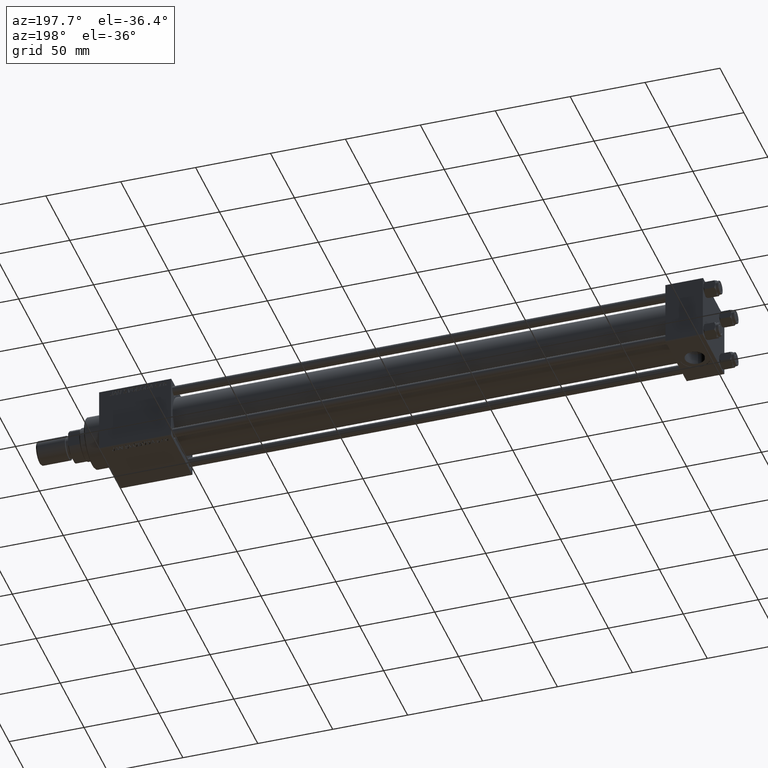
[diagram: clean part render]
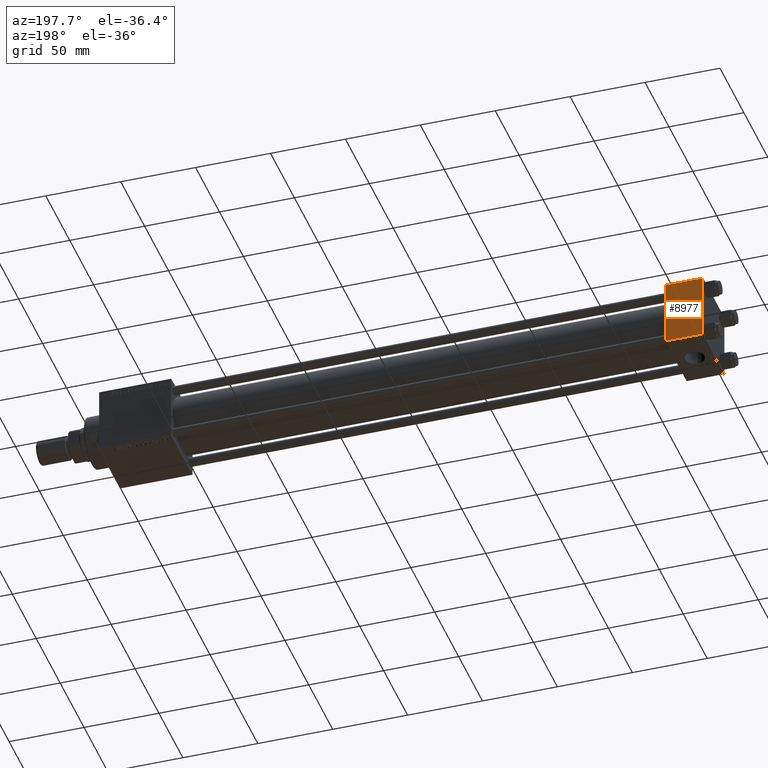
[diagram: same view with one face highlighted and labeled with its STEP entity id]
A machine part, auxiliary view. The second image highlights one B-rep face of the part: STEP entity #8977.
In plain terms, the highlighted planar face has unit normal (0, 1, 0).
Its self-contained STEP definition (entity closure, byte-faithful):
#120 = DIRECTION ( 'NONE',  ( 1.000000000000000000, 0.000000000000000000, 0.000000000000000000 ) ) ;
#4054 = VERTEX_POINT ( 'NONE', #37311 ) ;
#4689 = CARTESIAN_POINT ( 'NONE',  ( 0.000000000000000000, 22.50000000000000000, 22.50000000000000355 ) ) ;
#7044 = LINE ( 'NONE', #23242, #41146 ) ;
#8977 = ADVANCED_FACE ( 'NONE', ( #34414 ), #50616, .T. ) ;
#9258 = CARTESIAN_POINT ( 'NONE',  ( 25.00000000000000000, 22.50000000000000000, 21.99999999999999645 ) ) ;
#13058 = EDGE_CURVE ( 'NONE', #49857, #18200, #48726, .T. ) ;
#14237 = CARTESIAN_POINT ( 'NONE',  ( 25.00000000000000000, 22.50000000000000000, 22.50000000000000355 ) ) ;
#18200 = VERTEX_POINT ( 'NONE', #9258 ) ;
#18444 = EDGE_CURVE ( 'NONE', #49857, #4054, #41084, .T. ) ;
#21020 = ORIENTED_EDGE ( 'NONE', *, *, #52145, .T. ) ;
#21343 = VERTEX_POINT ( 'NONE', #50409 ) ;
#21547 = EDGE_LOOP ( 'NONE', ( #21020, #46203, #31878, #38221 ) ) ;
#22128 = CARTESIAN_POINT ( 'NONE',  ( 0.000000000000000000, 22.50000000000000000, 21.99999999999999645 ) ) ;
#22213 = VECTOR ( 'NONE', #120, 1000.000000000000000 ) ;
#23242 = CARTESIAN_POINT ( 'NONE',  ( 25.00000000000000000, 22.50000000000000000, 22.50000000000000355 ) ) ;
#23790 = EDGE_CURVE ( 'NONE', #21343, #4054, #52550, .T. ) ;
#26448 = DIRECTION ( 'NONE',  ( -0.000000000000000000, 1.000000000000000000, 0.000000000000000000 ) ) ;
#28270 = DIRECTION ( 'NONE',  ( 0.000000000000000000, 0.000000000000000000, -1.000000000000000000 ) ) ;
#28645 = DIRECTION ( 'NONE',  ( -1.000000000000000000, 0.000000000000000000, 0.000000000000000000 ) ) ;
#28786 = CARTESIAN_POINT ( 'NONE',  ( 25.00000000000000000, 22.50000000000000000, 21.99999999999999645 ) ) ;
#28855 = DIRECTION ( 'NONE',  ( 0.000000000000000000, 0.000000000000000000, -1.000000000000000000 ) ) ;
#31364 = AXIS2_PLACEMENT_3D ( 'NONE', #14237, #26448, #46901 ) ;
#31878 = ORIENTED_EDGE ( 'NONE', *, *, #18444, .F. ) ;
#34414 = FACE_OUTER_BOUND ( 'NONE', #21547, .T. ) ;
#35138 = VECTOR ( 'NONE', #28645, 1000.000000000000000 ) ;
#37311 = CARTESIAN_POINT ( 'NONE',  ( 0.000000000000000000, 22.50000000000000000, -21.99999999999996803 ) ) ;
#38221 = ORIENTED_EDGE ( 'NONE', *, *, #13058, .T. ) ;
#41084 = LINE ( 'NONE', #4689, #47709 ) ;
#41146 = VECTOR ( 'NONE', #28270, 1000.000000000000000 ) ;
#46203 = ORIENTED_EDGE ( 'NONE', *, *, #23790, .T. ) ;
#46901 = DIRECTION ( 'NONE',  ( 0.000000000000000000, -0.000000000000000000, 1.000000000000000000 ) ) ;
#47709 = VECTOR ( 'NONE', #28855, 1000.000000000000000 ) ;
#48726 = LINE ( 'NONE', #28786, #22213 ) ;
#49857 = VERTEX_POINT ( 'NONE', #22128 ) ;
#50409 = CARTESIAN_POINT ( 'NONE',  ( 25.00000000000000000, 22.50000000000000000, -21.99999999999996803 ) ) ;
#50616 = PLANE ( 'NONE',  #31364 ) ;
#52145 = EDGE_CURVE ( 'NONE', #18200, #21343, #7044, .T. ) ;
#52291 = CARTESIAN_POINT ( 'NONE',  ( 25.00000000000000000, 22.50000000000000000, -21.99999999999998224 ) ) ;
#52550 = LINE ( 'NONE', #52291, #35138 ) ;